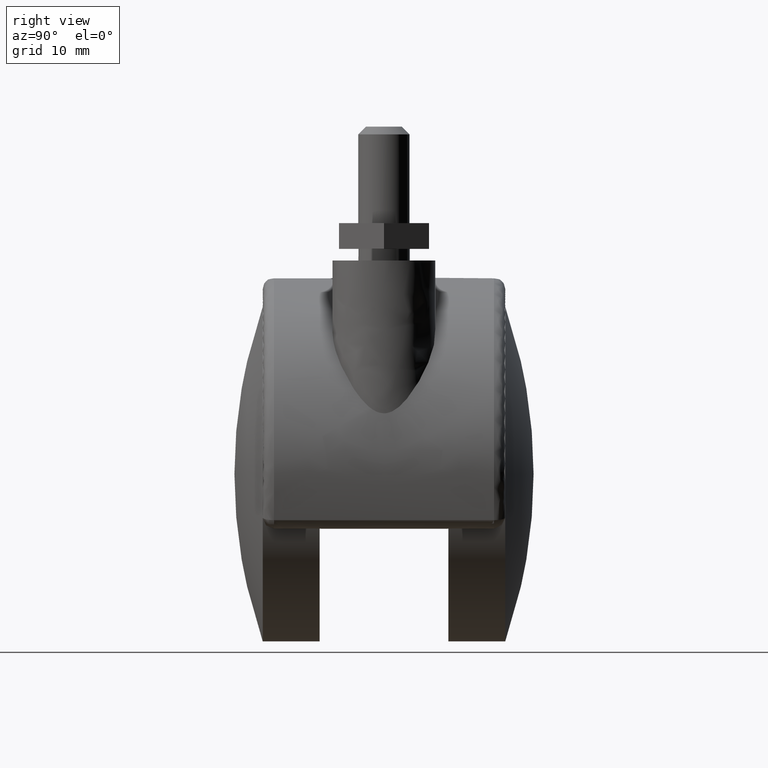
[diagram: clean part render]
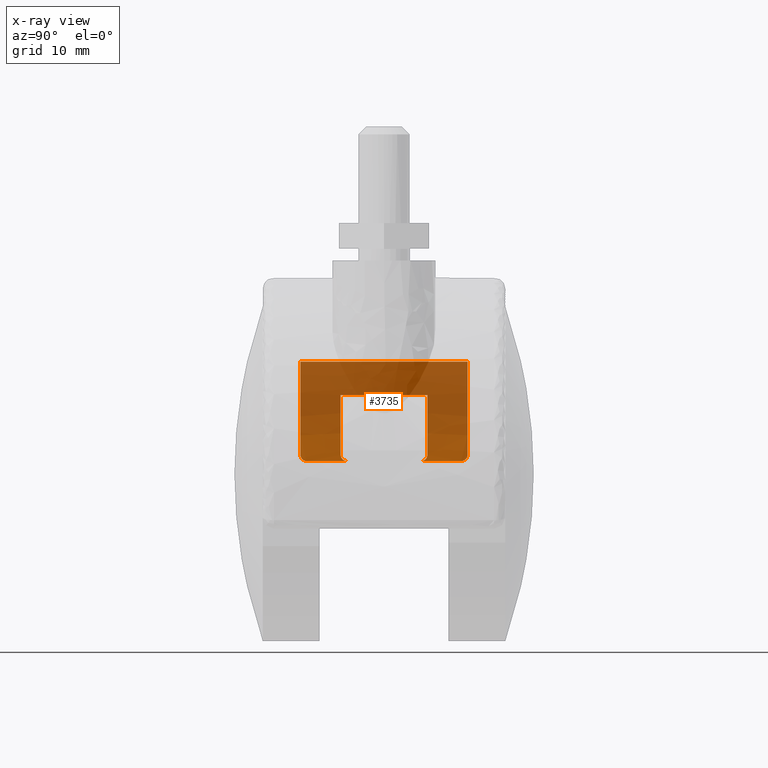
[diagram: x-ray — body ghosted, one internal face saturated and labeled with its STEP entity id]
A machine part, right view, then the same camera in x-ray: the body is ghosted and one INTERNAL B-rep face — a face not visible from any outside direction — is saturated and labeled: STEP entity #3735.
In plain terms, the highlighted face is a freeform B-spline surface patch.
Its self-contained STEP definition (entity closure, byte-faithful):
#3190=CARTESIAN_POINT('',(-18.894443627691199,-5.750000000000000,2.0));
#3191=VERTEX_POINT('',#3190);
#3197=CARTESIAN_POINT('',(-18.761663039293701,-6.750000000000000,3.0));
#3198=VERTEX_POINT('',#3197);
#3199=CARTESIAN_POINT('',(-18.761663039293701,-6.750000000000000,3.0));
#3200=CARTESIAN_POINT('',(-18.772136338605801,-6.750000000000002,2.934501162465546));
#3201=CARTESIAN_POINT('',(-18.782096038738811,-6.743626565541983,2.870015874243214));
#3202=CARTESIAN_POINT('',(-18.796322497222139,-6.724840603805475,2.774759676462990));
#3203=CARTESIAN_POINT('',(-18.800945463157159,-6.717029890141853,2.743254747255856));
#3204=CARTESIAN_POINT('',(-18.809959020361980,-6.698233365339325,2.680753358527176));
#3205=CARTESIAN_POINT('',(-18.814364442629969,-6.687186139035044,2.649645287974531));
#3206=CARTESIAN_POINT('',(-18.826974285729641,-6.649906527669389,2.559053999667226));
#3207=CARTESIAN_POINT('',(-18.834662939942682,-6.619448907145343,2.501694188412195));
#3208=CARTESIAN_POINT('',(-18.848777608183909,-6.547392918413935,2.393028322191455));
#3209=CARTESIAN_POINT('',(-18.855236073824489,-6.505338391770835,2.341420359804651));
#3210=CARTESIAN_POINT('',(-18.866507495339128,-6.413288647863860,2.248793371849185));
#3211=CARTESIAN_POINT('',(-18.871396859172890,-6.363029073026549,2.207203861786054));
#3212=CARTESIAN_POINT('',(-18.877735261573878,-6.281146204377138,2.152081195006593));
#3213=CARTESIAN_POINT('',(-18.879682838534499,-6.252683601060065,2.134905437988408));
#3214=CARTESIAN_POINT('',(-18.883176954277811,-6.194816740034788,2.103775992409507));
#3215=CARTESIAN_POINT('',(-18.886295042009259,-6.135720447052030,2.075653200648294));
#3216=CARTESIAN_POINT('',(-18.888712394857631,-6.074207286833745,2.053445260443463));
#3217=CARTESIAN_POINT('',(-18.890791298011361,-6.011471428285188,2.034231429376818));
#3218=CARTESIAN_POINT('',(-18.891663868494380,-5.979378023110510,2.026099523559267));
#3219=CARTESIAN_POINT('',(-18.893754899522719,-5.881986462887099,2.006538759888016));
#3220=CARTESIAN_POINT('',(-18.894443627691199,-5.816349673044193,2.0));
#3221=CARTESIAN_POINT('',(-18.894443627691199,-5.750000000000000,2.0));
#3222=B_SPLINE_CURVE_WITH_KNOTS('',3,(#3199,#3200,#3201,#3202,#3203,#3204,#3205,#3206,#3207,#3208,#3209,#3210,#3211,#3212,#3213,#3214,#3215,#3216,#3217,#3218,#3219,#3220,#3221),.UNSPECIFIED.,.F.,.U.,(4,2,2,2,2,2,2,2,1,2,2,4),(0.0,0.125000000000001,0.187500000000002,0.250000000000002,0.375000000000001,0.500000000000001,0.625000000000001,0.687500000000000,0.750000000000000,0.812499999999999,0.874999999999999,1.0),.UNSPECIFIED.);
#3223=EDGE_CURVE('',#3198,#3191,#3222,.T.);
#3277=CARTESIAN_POINT('',(-18.761663039293701,6.750000000000000,3.0));
#3278=VERTEX_POINT('',#3277);
#3284=CARTESIAN_POINT('',(-18.894443627691199,5.750000000000000,2.0));
#3285=VERTEX_POINT('',#3284);
#3286=CARTESIAN_POINT('',(-18.894443627691199,5.750000000000000,2.0));
#3287=CARTESIAN_POINT('',(-18.894443627691199,5.816340089798110,2.0));
#3288=CARTESIAN_POINT('',(-18.893755016630880,5.881560134999138,2.006536099276914));
#3289=CARTESIAN_POINT('',(-18.891702586896749,5.977779227215512,2.025738088890190));
#3290=CARTESIAN_POINT('',(-18.890846700358900,6.009581738512580,2.033716804918213));
#3291=CARTESIAN_POINT('',(-18.888771389098441,6.072633137494402,2.052902459797726));
#3292=CARTESIAN_POINT('',(-18.887546714464172,6.103944270127222,2.064156140006524));
#3293=CARTESIAN_POINT('',(-18.883379998415620,6.194975576713583,2.102047973050960));
#3294=CARTESIAN_POINT('',(-18.879932848899280,6.252514285096932,2.132952103104125));
#3295=CARTESIAN_POINT('',(-18.873642132730019,6.334139610276921,2.187685971274014));
#3296=CARTESIAN_POINT('',(-18.871345527367080,6.360676988030680,2.207433844952303));
#3297=CARTESIAN_POINT('',(-18.866390646821529,6.411566610929464,2.249388840250414));
#3298=CARTESIAN_POINT('',(-18.863749010214519,6.435776218268696,2.271456769980961));
#3299=CARTESIAN_POINT('',(-18.855309796693469,6.504814989394846,2.340825235629653));
#3300=CARTESIAN_POINT('',(-18.849003023049111,6.546087667040354,2.391260897304321));
#3301=CARTESIAN_POINT('',(-18.838349684066898,6.600702263039509,2.473326119073119));
#3302=CARTESIAN_POINT('',(-18.834611236002999,6.617590274520782,2.501652161592304));
#3303=CARTESIAN_POINT('',(-18.826873191060791,6.648215287438223,2.559236174464217));
#3304=CARTESIAN_POINT('',(-18.818839026218011,6.675875299145322,2.618023279598888));
#3305=CARTESIAN_POINT('',(-18.810183942900579,6.697697853473424,2.679173741165670));
#3306=CARTESIAN_POINT('',(-18.801198585906889,6.716565062033185,2.741518490617698));
#3307=CARTESIAN_POINT('',(-18.796518145788941,6.724545665215903,2.773437888537529));
#3308=CARTESIAN_POINT('',(-18.782149533327662,6.743627425185223,2.869680716371149));
#3309=CARTESIAN_POINT('',(-18.772135243103548,6.750000000000000,2.934508013613643));
#3310=CARTESIAN_POINT('',(-18.761663039293701,6.750000000000000,3.0));
#3311=B_SPLINE_CURVE_WITH_KNOTS('',3,(#3286,#3287,#3288,#3289,#3290,#3291,#3292,#3293,#3294,#3295,#3296,#3297,#3298,#3299,#3300,#3301,#3302,#3303,#3304,#3305,#3306,#3307,#3308,#3309,#3310),.UNSPECIFIED.,.F.,.U.,(4,2,2,2,2,2,2,2,2,1,2,2,4),(0.0,0.124999999999998,0.187499999999998,0.249999999999998,0.375000000000000,0.437500000000000,0.500000000000000,0.625000000000000,0.687500000000001,0.750000000000001,0.812500000000001,0.875000000000001,1.0),.UNSPECIFIED.);
#3312=EDGE_CURVE('',#3285,#3278,#3311,.T.);
#3336=CARTESIAN_POINT('',(-18.894443627691199,-12.0,2.0));
#3337=VERTEX_POINT('',#3336);
#3338=CARTESIAN_POINT('',(-18.761663039293701,-13.0,3.0));
#3339=VERTEX_POINT('',#3338);
#3340=CARTESIAN_POINT('',(-18.894443627691199,-12.0,2.0));
#3341=CARTESIAN_POINT('',(-18.894443627691199,-12.066340089798119,2.0));
#3342=CARTESIAN_POINT('',(-18.893755016630891,-12.131560134999139,2.006536099276914));
#3343=CARTESIAN_POINT('',(-18.891702586896749,-12.227779227215510,2.025738088890190));
#3344=CARTESIAN_POINT('',(-18.890846700358900,-12.259581738512580,2.033716804918212));
#3345=CARTESIAN_POINT('',(-18.888771389098441,-12.322633137494400,2.052902459797726));
#3346=CARTESIAN_POINT('',(-18.887546714464172,-12.353944270127220,2.064156140006525));
#3347=CARTESIAN_POINT('',(-18.883379998415631,-12.444975576713590,2.102047973050961));
#3348=CARTESIAN_POINT('',(-18.879932848899291,-12.502514285096931,2.132952103104124));
#3349=CARTESIAN_POINT('',(-18.873642132730019,-12.584139610276919,2.187685971274013));
#3350=CARTESIAN_POINT('',(-18.871345527367069,-12.610676988030679,2.207433844952306));
#3351=CARTESIAN_POINT('',(-18.866390646821529,-12.661566610929460,2.249388840250417));
#3352=CARTESIAN_POINT('',(-18.863749010214509,-12.685776218268691,2.271456769980962));
#3353=CARTESIAN_POINT('',(-18.855309796693469,-12.754814989394839,2.340825235629652));
#3354=CARTESIAN_POINT('',(-18.849003023049111,-12.796087667040361,2.391260897304321));
#3355=CARTESIAN_POINT('',(-18.838349684066909,-12.850702263039510,2.473326119073117));
#3356=CARTESIAN_POINT('',(-18.834611236002988,-12.867590274520790,2.501652161592307));
#3357=CARTESIAN_POINT('',(-18.826873191060791,-12.898215287438219,2.559236174464218));
#3358=CARTESIAN_POINT('',(-18.818839026218011,-12.925875299145320,2.618023279598888));
#3359=CARTESIAN_POINT('',(-18.810183942900569,-12.947697853473430,2.679173741165665));
#3360=CARTESIAN_POINT('',(-18.801198585906899,-12.966565062033190,2.741518490617692));
#3361=CARTESIAN_POINT('',(-18.796518145788941,-12.974545665215910,2.773437888537535));
#3362=CARTESIAN_POINT('',(-18.782149533327651,-12.993627425185220,2.869680716371151));
#3363=CARTESIAN_POINT('',(-18.772135243103541,-13.0,2.934508013613642));
#3364=CARTESIAN_POINT('',(-18.761663039293701,-13.0,3.0));
#3365=B_SPLINE_CURVE_WITH_KNOTS('',3,(#3340,#3341,#3342,#3343,#3344,#3345,#3346,#3347,#3348,#3349,#3350,#3351,#3352,#3353,#3354,#3355,#3356,#3357,#3358,#3359,#3360,#3361,#3362,#3363,#3364),.UNSPECIFIED.,.F.,.U.,(4,2,2,2,2,2,2,2,2,1,2,2,4),(0.0,0.125000000000002,0.187500000000002,0.250000000000001,0.375000000000003,0.437500000000004,0.500000000000005,0.625000000000004,0.687500000000003,0.750000000000003,0.812500000000002,0.875000000000002,1.0),.UNSPECIFIED.);
#3366=EDGE_CURVE('',#3337,#3339,#3365,.T.);
#3425=CARTESIAN_POINT('',(-18.761663039293701,13.0,3.0));
#3426=VERTEX_POINT('',#3425);
#3427=CARTESIAN_POINT('',(-18.894443627691199,12.0,2.0));
#3428=VERTEX_POINT('',#3427);
#3429=CARTESIAN_POINT('',(-18.761663039293701,13.0,3.0));
#3430=CARTESIAN_POINT('',(-18.772136338605801,13.0,2.934501162465546));
#3431=CARTESIAN_POINT('',(-18.782096038738811,12.993626565541989,2.870015874243215));
#3432=CARTESIAN_POINT('',(-18.796322497222128,12.974840603805470,2.774759676462991));
#3433=CARTESIAN_POINT('',(-18.800945463157159,12.967029890141850,2.743254747255855));
#3434=CARTESIAN_POINT('',(-18.809959020361969,12.948233365339330,2.680753358527177));
#3435=CARTESIAN_POINT('',(-18.814364442629969,12.937186139035051,2.649645287974530));
#3436=CARTESIAN_POINT('',(-18.826974285729630,12.899906527669390,2.559053999667225));
#3437=CARTESIAN_POINT('',(-18.834662939942682,12.869448907145340,2.501694188412195));
#3438=CARTESIAN_POINT('',(-18.848777608183902,12.797392918413941,2.393028322191453));
#3439=CARTESIAN_POINT('',(-18.855236073824489,12.755338391770840,2.341420359804652));
#3440=CARTESIAN_POINT('',(-18.866507495339128,12.663288647863860,2.248793371849185));
#3441=CARTESIAN_POINT('',(-18.871396859172879,12.613029073026549,2.207203861786054));
#3442=CARTESIAN_POINT('',(-18.877735261573889,12.531146204377141,2.152081195006593));
#3443=CARTESIAN_POINT('',(-18.879682838534510,12.502683601060070,2.134905437988408));
#3444=CARTESIAN_POINT('',(-18.883176954277801,12.444816740034790,2.103775992409506));
#3445=CARTESIAN_POINT('',(-18.886295042009259,12.385720447052030,2.075653200648296));
#3446=CARTESIAN_POINT('',(-18.888712394857642,12.324207286833740,2.053445260443463));
#3447=CARTESIAN_POINT('',(-18.890791298011351,12.261471428285191,2.034231429376817));
#3448=CARTESIAN_POINT('',(-18.891663868494369,12.229378023110510,2.026099523559268));
#3449=CARTESIAN_POINT('',(-18.893754899522719,12.131986462887101,2.006538759888016));
#3450=CARTESIAN_POINT('',(-18.894443627691199,12.066349673044190,2.0));
#3451=CARTESIAN_POINT('',(-18.894443627691199,12.0,2.0));
#3452=B_SPLINE_CURVE_WITH_KNOTS('',3,(#3429,#3430,#3431,#3432,#3433,#3434,#3435,#3436,#3437,#3438,#3439,#3440,#3441,#3442,#3443,#3444,#3445,#3446,#3447,#3448,#3449,#3450,#3451),.UNSPECIFIED.,.F.,.U.,(4,2,2,2,2,2,2,2,1,2,2,4),(0.0,0.125000000000002,0.187500000000003,0.250000000000003,0.375000000000003,0.500000000000002,0.625000000000002,0.687500000000002,0.750000000000001,0.812500000000001,0.875000000000001,1.0),.UNSPECIFIED.);
#3453=EDGE_CURVE('',#3426,#3428,#3452,.T.);
#3505=CARTESIAN_POINT('',(-7.500000000000000,-13.0,17.457090250096101));
#3506=VERTEX_POINT('',#3505);
#3507=CARTESIAN_POINT('',(-7.499999999999990,-13.0,17.457090250096091));
#3508=CARTESIAN_POINT('',(-17.110157927626016,-12.999999999999996,13.328327470926844));
#3509=CARTESIAN_POINT('',(-18.761663039293719,-13.0,3.000000000000006));
#3517=(BOUNDED_CURVE()B_SPLINE_CURVE(2,(#3507,#3508,#3509),.UNSPECIFIED.,.F.,.U.)CURVE()GEOMETRIC_REPRESENTATION_ITEM()QUASI_UNIFORM_CURVE()RATIONAL_B_SPLINE_CURVE((1.0,0.876030255002670,1.0))REPRESENTATION_ITEM(''));
#3518=EDGE_CURVE('',#3506,#3339,#3517,.T.);
#3565=CARTESIAN_POINT('',(-7.500000000000000,13.0,17.457090250096101));
#3566=VERTEX_POINT('',#3565);
#3567=CARTESIAN_POINT('',(-7.499999999999990,13.0,17.457090250096091));
#3568=CARTESIAN_POINT('',(-17.110157927626016,12.999999999999996,13.328327470926844));
#3569=CARTESIAN_POINT('',(-18.761663039293719,13.0,3.000000000000006));
#3577=(BOUNDED_CURVE()B_SPLINE_CURVE(2,(#3567,#3568,#3569),.UNSPECIFIED.,.F.,.U.)CURVE()GEOMETRIC_REPRESENTATION_ITEM()QUASI_UNIFORM_CURVE()RATIONAL_B_SPLINE_CURVE((1.0,0.876030255002670,1.0))REPRESENTATION_ITEM(''));
#3578=EDGE_CURVE('',#3566,#3426,#3577,.T.);
#3600=CARTESIAN_POINT('',(-7.500000000000000,-6.900000000000000,17.457090250096101));
#3601=VERTEX_POINT('',#3600);
#3607=CARTESIAN_POINT('',(-7.500000000000000,-6.900000000000000,17.457090250096101));
#3608=CARTESIAN_POINT('',(-7.500000000000000,-13.0,17.457090250096101));
#3609=QUASI_UNIFORM_CURVE('',1,(#3607,#3608),.UNSPECIFIED.,.F.,.U.);
#3610=EDGE_CURVE('',#3601,#3506,#3609,.T.);
#3655=CARTESIAN_POINT('',(-18.947742766867890,13.650000000000000,1.408205965264028));
#3656=CARTESIAN_POINT('',(-18.947742766867890,-13.666250000000000,1.408205965264028));
#3657=CARTESIAN_POINT('',(-18.043838293759556,13.650000000000007,13.570453438109285));
#3658=CARTESIAN_POINT('',(-18.043838293759556,-13.666249999999998,13.570453438109285));
#3659=CARTESIAN_POINT('',(-6.609835758528075,13.650000000000007,17.813199354559629));
#3660=CARTESIAN_POINT('',(-6.609835758528075,-13.666250000000002,17.813199354559629));
#3668=(BOUNDED_SURFACE()B_SPLINE_SURFACE(1,2,((#3655,#3657,#3659),(#3656,#3658,#3660)),.UNSPECIFIED.,.F.,.F.,.U.)B_SPLINE_SURFACE_WITH_KNOTS((2,2),(3,3),(0.0,27.316250000000011),(0.0,22.292799593734429),.UNSPECIFIED.)GEOMETRIC_REPRESENTATION_ITEM()RATIONAL_B_SPLINE_SURFACE(((1.0,0.838092953877438,0.991798842308037),(1.0,0.838092953877438,0.991798842308037)))REPRESENTATION_ITEM('')SURFACE());
#3669=ORIENTED_EDGE('',*,*,#3578,.T.);
#3670=ORIENTED_EDGE('',*,*,#3453,.T.);
#3671=CARTESIAN_POINT('',(-18.894443627691199,12.0,2.0));
#3672=CARTESIAN_POINT('',(-18.894443627691199,5.750000000000000,2.0));
#3673=QUASI_UNIFORM_CURVE('',1,(#3671,#3672),.UNSPECIFIED.,.F.,.U.);
#3674=EDGE_CURVE('',#3428,#3285,#3673,.T.);
#3675=ORIENTED_EDGE('',*,*,#3674,.T.);
#3676=ORIENTED_EDGE('',*,*,#3312,.T.);
#3677=CARTESIAN_POINT('',(-14.500000000000000,6.750000000000000,12.278029157808660));
#3678=VERTEX_POINT('',#3677);
#3679=CARTESIAN_POINT('',(-14.500000000000011,6.750000000000000,12.278029157808660));
#3680=CARTESIAN_POINT('',(-17.924841156980008,6.750000000000000,8.233390059959081));
#3681=CARTESIAN_POINT('',(-18.761663039293719,6.750000000000000,3.000000000000006));
#3689=(BOUNDED_CURVE()B_SPLINE_CURVE(2,(#3679,#3680,#3681),.UNSPECIFIED.,.F.,.U.)CURVE()GEOMETRIC_REPRESENTATION_ITEM()QUASI_UNIFORM_CURVE()RATIONAL_B_SPLINE_CURVE((1.0,0.963228500103487,1.0))REPRESENTATION_ITEM(''));
#3690=EDGE_CURVE('',#3678,#3278,#3689,.T.);
#3691=ORIENTED_EDGE('',*,*,#3690,.F.);
#3692=CARTESIAN_POINT('',(-14.500000000000000,-6.750000000000000,12.278029157808660));
#3693=VERTEX_POINT('',#3692);
#3694=CARTESIAN_POINT('',(-14.500000000000000,6.750000000000000,12.278029157808660));
#3695=CARTESIAN_POINT('',(-14.500000000000000,-6.750000000000000,12.278029157808660));
#3696=QUASI_UNIFORM_CURVE('',1,(#3694,#3695),.UNSPECIFIED.,.F.,.U.);
#3697=EDGE_CURVE('',#3678,#3693,#3696,.T.);
#3698=ORIENTED_EDGE('',*,*,#3697,.T.);
#3699=CARTESIAN_POINT('',(-14.500000000000011,-6.750000000000000,12.278029157808660));
#3700=CARTESIAN_POINT('',(-17.924841156980008,-6.750000000000000,8.233390059959081));
#3701=CARTESIAN_POINT('',(-18.761663039293719,-6.750000000000000,3.000000000000006));
#3709=(BOUNDED_CURVE()B_SPLINE_CURVE(2,(#3699,#3700,#3701),.UNSPECIFIED.,.F.,.U.)CURVE()GEOMETRIC_REPRESENTATION_ITEM()QUASI_UNIFORM_CURVE()RATIONAL_B_SPLINE_CURVE((1.0,0.963228500103487,1.0))REPRESENTATION_ITEM(''));
#3710=EDGE_CURVE('',#3693,#3198,#3709,.T.);
#3711=ORIENTED_EDGE('',*,*,#3710,.T.);
#3712=ORIENTED_EDGE('',*,*,#3223,.T.);
#3713=CARTESIAN_POINT('',(-18.894443627691199,-5.750000000000000,2.0));
#3714=CARTESIAN_POINT('',(-18.894443627691199,-12.0,2.0));
#3715=QUASI_UNIFORM_CURVE('',1,(#3713,#3714),.UNSPECIFIED.,.F.,.U.);
#3716=EDGE_CURVE('',#3191,#3337,#3715,.T.);
#3717=ORIENTED_EDGE('',*,*,#3716,.T.);
#3718=ORIENTED_EDGE('',*,*,#3366,.T.);
#3719=ORIENTED_EDGE('',*,*,#3518,.F.);
#3720=ORIENTED_EDGE('',*,*,#3610,.F.);
#3721=CARTESIAN_POINT('',(-7.500000000000000,6.900000000000000,17.457090250096101));
#3722=VERTEX_POINT('',#3721);
#3723=CARTESIAN_POINT('',(-7.500000000000000,6.900000000000000,17.457090250096101));
#3724=CARTESIAN_POINT('',(-7.500000000000000,-6.900000000000000,17.457090250096101));
#3725=QUASI_UNIFORM_CURVE('',1,(#3723,#3724),.UNSPECIFIED.,.F.,.U.);
#3726=EDGE_CURVE('',#3722,#3601,#3725,.T.);
#3727=ORIENTED_EDGE('',*,*,#3726,.F.);
#3728=CARTESIAN_POINT('',(-7.500000000000000,13.0,17.457090250096101));
#3729=CARTESIAN_POINT('',(-7.500000000000000,6.900000000000000,17.457090250096101));
#3730=QUASI_UNIFORM_CURVE('',1,(#3728,#3729),.UNSPECIFIED.,.F.,.U.);
#3731=EDGE_CURVE('',#3566,#3722,#3730,.T.);
#3732=ORIENTED_EDGE('',*,*,#3731,.F.);
#3733=EDGE_LOOP('',(#3669,#3670,#3675,#3676,#3691,#3698,#3711,#3712,#3717,#3718,#3719,#3720,#3727,#3732));
#3734=FACE_OUTER_BOUND('',#3733,.T.);
#3735=ADVANCED_FACE('',(#3734),#3668,.T.);